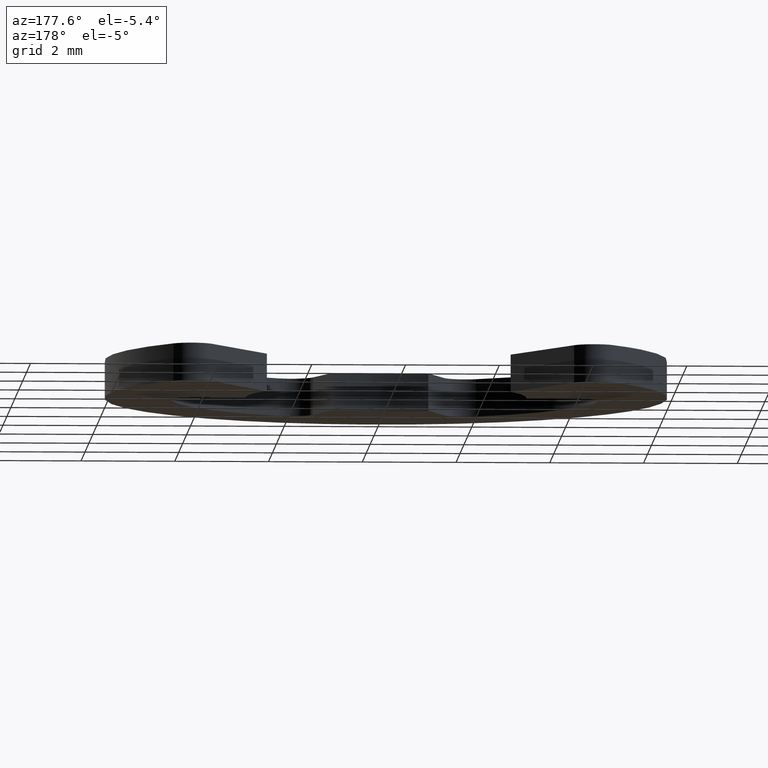
[diagram: clean part render]
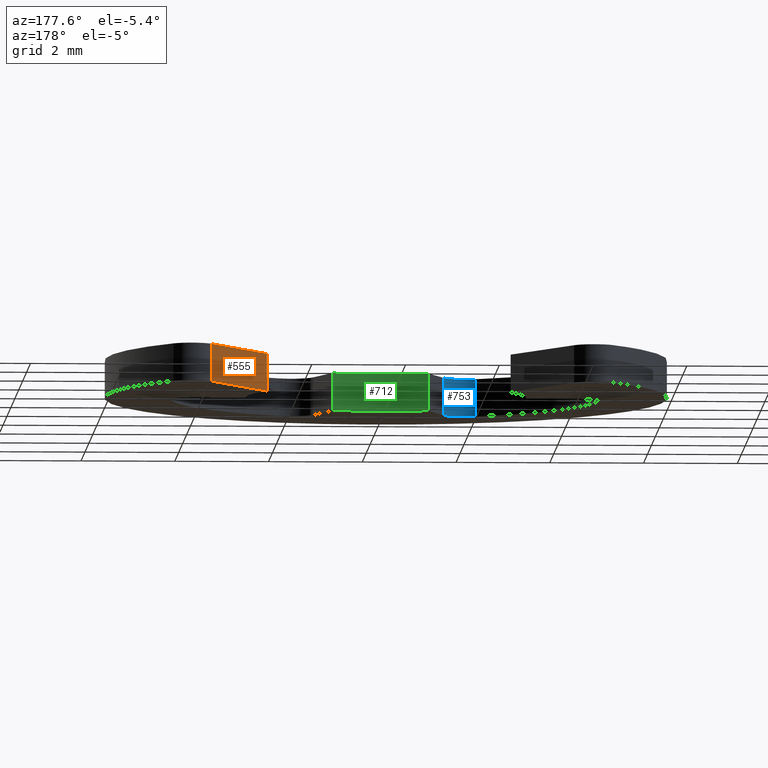
[diagram: same view with three faces highlighted in distinct colors, each labeled with its STEP entity id]
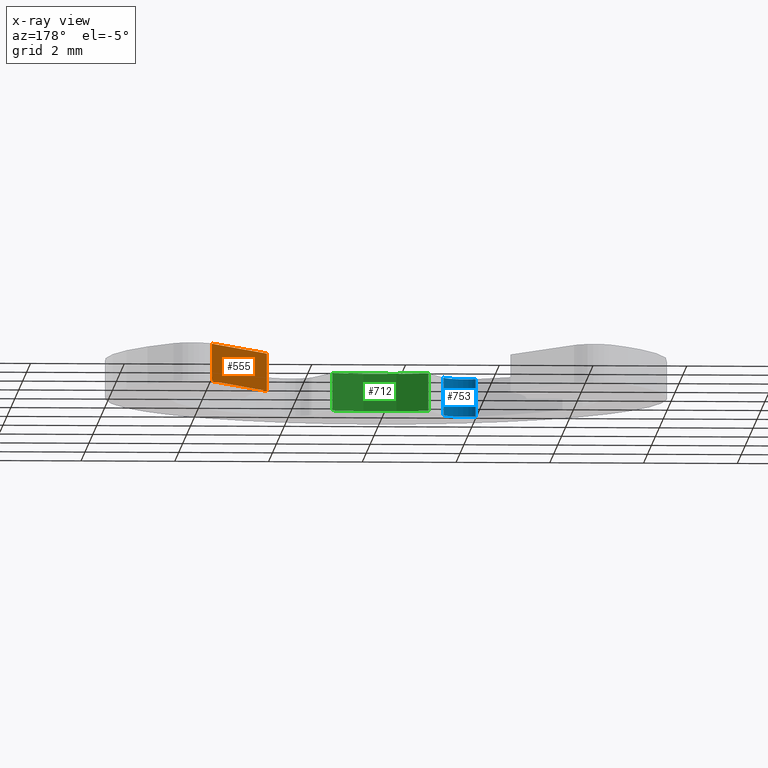
[diagram: x-ray of the same camera — body ghosted, the three highlighted faces saturated]
A machine part, auxiliary view with three faces highlighted in distinct colors.
The next image is the same camera in x-ray (body ghosted, the three faces saturated) — at least one of them is partly hidden behind the body in this view.
Their STEP definitions:

[orange] entity #555 — the highlighted face is a freeform B-spline surface patch.
#49=CARTESIAN_POINT('',(3.863010000000000,3.684273000000000,0.0));
#50=VERTEX_POINT('',#49);
#267=CARTESIAN_POINT('',(2.599998350847290,1.496665819610834,0.0));
#268=VERTEX_POINT('',#267);
#282=CARTESIAN_POINT('',(2.599998350847290,1.496665819610834,0.0));
#283=CARTESIAN_POINT('',(3.863010000000000,3.684273000000000,0.0));
#284=QUASI_UNIFORM_CURVE('',1,(#282,#283),.UNSPECIFIED.,.F.,.U.);
#285=EDGE_CURVE('',#268,#50,#284,.T.);
#295=CARTESIAN_POINT('',(3.863010000000000,3.684273000000000,0.799987999999918));
#296=VERTEX_POINT('',#295);
#314=CARTESIAN_POINT('',(2.599998350847290,1.496665819610834,0.799987999999918));
#315=VERTEX_POINT('',#314);
#316=CARTESIAN_POINT('',(2.599998350847290,1.496665819610834,0.799987999999918));
#317=CARTESIAN_POINT('',(3.863010000000000,3.684273000000000,0.799987999999918));
#318=QUASI_UNIFORM_CURVE('',1,(#316,#317),.UNSPECIFIED.,.F.,.U.);
#319=EDGE_CURVE('',#315,#296,#318,.T.);
#536=CARTESIAN_POINT('',(3.926097472078751,3.793543922414719,-0.039959396191345));
#537=CARTESIAN_POINT('',(2.536909742352494,1.387395448991825,-0.039959396191345));
#538=CARTESIAN_POINT('',(3.926097472078751,3.793543922414719,0.839947360429013));
#539=CARTESIAN_POINT('',(2.536909742352494,1.387395448991825,0.839947360429013));
#540=B_SPLINE_SURFACE_WITH_KNOTS('',1,1,((#536,#538),(#537,#539)),.UNSPECIFIED.,.F.,.F.,.U.,(2,2),(2,2),(0.0,2.778379568125513),(0.041708337925747,0.958291624821350),.UNSPECIFIED.);
#541=ORIENTED_EDGE('',*,*,#285,.F.);
#542=CARTESIAN_POINT('',(2.599998350847290,1.496665819610834,0.799987999999918));
#543=CARTESIAN_POINT('',(2.599998350847290,1.496665819610834,0.0));
#544=QUASI_UNIFORM_CURVE('',1,(#542,#543),.UNSPECIFIED.,.F.,.U.);
#545=EDGE_CURVE('',#315,#268,#544,.T.);
#546=ORIENTED_EDGE('',*,*,#545,.F.);
#547=ORIENTED_EDGE('',*,*,#319,.T.);
#548=CARTESIAN_POINT('',(3.863010000000000,3.684273000000000,0.799987999999918));
#549=CARTESIAN_POINT('',(3.863010000000000,3.684273000000000,0.0));
#550=QUASI_UNIFORM_CURVE('',1,(#548,#549),.UNSPECIFIED.,.F.,.U.);
#551=EDGE_CURVE('',#296,#50,#550,.T.);
#552=ORIENTED_EDGE('',*,*,#551,.T.);
#553=EDGE_LOOP('',(#541,#546,#547,#552));
#554=FACE_OUTER_BOUND('',#553,.T.);
#555=ADVANCED_FACE('',(#554),#540,.T.);

[blue] entity #753 — the highlighted face is a freeform B-spline surface patch.
#150=CARTESIAN_POINT('',(-2.088696213768935,-4.098456798184810,0.0));
#151=VERTEX_POINT('',#150);
#165=CARTESIAN_POINT('',(-1.391817958012584,-3.823983127035450,0.0));
#166=VERTEX_POINT('',#165);
#167=CARTESIAN_POINT('',(-1.391817958012584,-3.823983127035450,0.0));
#168=CARTESIAN_POINT('',(-1.468856879404417,-4.035644854333030,0.0));
#169=CARTESIAN_POINT('',(-1.678433037067881,-4.118188881075313,0.0));
#170=CARTESIAN_POINT('',(-1.888009194731345,-4.200732907817598,0.0));
#171=CARTESIAN_POINT('',(-2.088696213768936,-4.098456798184811,0.0));
#179=(BOUNDED_CURVE()B_SPLINE_CURVE(2,(#167,#168,#169,#170,#171),.UNSPECIFIED.,.F.,.U.)B_SPLINE_CURVE_WITH_KNOTS((3,2,3),(0.0,0.500000000000000,1.0),.UNSPECIFIED.)CURVE()GEOMETRIC_REPRESENTATION_ITEM()RATIONAL_B_SPLINE_CURVE((1.0,0.911753678768537,1.0,0.911753678768537,1.0))REPRESENTATION_ITEM(''));
#180=EDGE_CURVE('',#166,#151,#179,.T.);
#414=CARTESIAN_POINT('',(-1.391817958012584,-3.823983127035450,0.799987999999918));
#415=VERTEX_POINT('',#414);
#421=CARTESIAN_POINT('',(-2.088696213768935,-4.098456798184810,0.799987999999918));
#422=VERTEX_POINT('',#421);
#423=CARTESIAN_POINT('',(-1.391817958012584,-3.823983127035450,0.799987999999918));
#424=CARTESIAN_POINT('',(-1.468856879404417,-4.035644854333030,0.799987999999918));
#425=CARTESIAN_POINT('',(-1.678433037067881,-4.118188881075313,0.799987999999918));
#426=CARTESIAN_POINT('',(-1.888009194731345,-4.200732907817598,0.799987999999918));
#427=CARTESIAN_POINT('',(-2.088696213768936,-4.098456798184811,0.799987999999918));
#435=(BOUNDED_CURVE()B_SPLINE_CURVE(2,(#423,#424,#425,#426,#427),.UNSPECIFIED.,.F.,.U.)B_SPLINE_CURVE_WITH_KNOTS((3,2,3),(0.0,0.500000000000000,1.0),.UNSPECIFIED.)CURVE()GEOMETRIC_REPRESENTATION_ITEM()RATIONAL_B_SPLINE_CURVE((1.0,0.911753678768537,1.0,0.911753678768537,1.0))REPRESENTATION_ITEM(''));
#436=EDGE_CURVE('',#415,#422,#435,.T.);
#719=CARTESIAN_POINT('',(-1.391817958012584,-3.823983127035450,0.799987999999918));
#720=CARTESIAN_POINT('',(-1.391817958012584,-3.823983127035450,0.0));
#721=QUASI_UNIFORM_CURVE('',1,(#719,#720),.UNSPECIFIED.,.F.,.U.);
#722=EDGE_CURVE('',#415,#166,#721,.T.);
#729=CARTESIAN_POINT('',(-2.100279838521331,-4.092361131706314,0.819987699999916));
#730=CARTESIAN_POINT('',(-2.100279838521331,-4.092361131706314,-0.020499692499998));
#731=CARTESIAN_POINT('',(-1.557679898172794,-4.387027131676369,0.819987699999916));
#732=CARTESIAN_POINT('',(-1.557679898172794,-4.387027131676369,-0.020499692499998));
#733=CARTESIAN_POINT('',(-1.382265928319737,-3.795019795585861,0.819987699999916));
#734=CARTESIAN_POINT('',(-1.382265928319737,-3.795019795585861,-0.020499692499998));
#742=(BOUNDED_SURFACE()B_SPLINE_SURFACE(1,2,((#729,#731,#733),(#730,#732,#734)),.UNSPECIFIED.,.F.,.F.,.U.)GEOMETRIC_REPRESENTATION_ITEM()QUASI_UNIFORM_SURFACE()RATIONAL_B_SPLINE_SURFACE(((1.0,0.629320391049837,1.0),(1.0,0.629320391049837,1.0)))REPRESENTATION_ITEM('')SURFACE());
#743=ORIENTED_EDGE('',*,*,#180,.T.);
#744=CARTESIAN_POINT('',(-2.088696213768935,-4.098456798184810,0.799987999999918));
#745=CARTESIAN_POINT('',(-2.088696213768935,-4.098456798184810,0.0));
#746=QUASI_UNIFORM_CURVE('',1,(#744,#745),.UNSPECIFIED.,.F.,.U.);
#747=EDGE_CURVE('',#422,#151,#746,.T.);
#748=ORIENTED_EDGE('',*,*,#747,.F.);
#749=ORIENTED_EDGE('',*,*,#436,.F.);
#750=ORIENTED_EDGE('',*,*,#722,.T.);
#751=EDGE_LOOP('',(#743,#748,#749,#750));
#752=FACE_OUTER_BOUND('',#751,.T.);
#753=ADVANCED_FACE('',(#752),#742,.F.);

[green] entity #712 — the highlighted face is a freeform B-spline surface patch.
#182=CARTESIAN_POINT('',(-1.026060000000012,-2.819076000000000,0.0));
#183=VERTEX_POINT('',#182);
#189=CARTESIAN_POINT('',(1.026058412686930,-2.819078596590450,0.0));
#190=VERTEX_POINT('',#189);
#191=CARTESIAN_POINT('',(1.026058412686930,-2.819078596590450,0.0));
#192=CARTESIAN_POINT('',(-0.000000941773228,-3.192532055437769,0.0));
#193=CARTESIAN_POINT('',(-1.026060000000012,-2.819076000000000,0.0));
#201=(BOUNDED_CURVE()B_SPLINE_CURVE(2,(#191,#192,#193),.UNSPECIFIED.,.F.,.U.)CURVE()GEOMETRIC_REPRESENTATION_ITEM()QUASI_UNIFORM_CURVE()RATIONAL_B_SPLINE_CURVE((1.0,0.939692729881005,1.0))REPRESENTATION_ITEM(''));
#202=EDGE_CURVE('',#190,#183,#201,.T.);
#392=CARTESIAN_POINT('',(1.026058412686930,-2.819078596590450,0.799987999999918));
#393=VERTEX_POINT('',#392);
#399=CARTESIAN_POINT('',(-1.026060000000012,-2.819076000000000,0.799987999999918));
#400=VERTEX_POINT('',#399);
#401=CARTESIAN_POINT('',(1.026058412686930,-2.819078596590450,0.799987999999918));
#402=CARTESIAN_POINT('',(-0.000000941773228,-3.192532055437769,0.799987999999918));
#403=CARTESIAN_POINT('',(-1.026060000000012,-2.819076000000000,0.799987999999918));
#411=(BOUNDED_CURVE()B_SPLINE_CURVE(2,(#401,#402,#403),.UNSPECIFIED.,.F.,.U.)CURVE()GEOMETRIC_REPRESENTATION_ITEM()QUASI_UNIFORM_CURVE()RATIONAL_B_SPLINE_CURVE((1.0,0.939692729881005,1.0))REPRESENTATION_ITEM(''));
#412=EDGE_CURVE('',#393,#400,#411,.T.);
#678=CARTESIAN_POINT('',(1.026058412686930,-2.819078596590450,0.799987999999918));
#679=CARTESIAN_POINT('',(1.026058412686930,-2.819078596590450,0.0));
#680=QUASI_UNIFORM_CURVE('',1,(#678,#679),.UNSPECIFIED.,.F.,.U.);
#681=EDGE_CURVE('',#393,#190,#680,.T.);
#688=CARTESIAN_POINT('',(-1.050622361946017,-2.810016486175653,0.819987699999916));
#689=CARTESIAN_POINT('',(-1.050622361946017,-2.810016486175653,-0.020499692499998));
#690=CARTESIAN_POINT('',(0.040943855881788,-3.218136468260001,0.819987699999916));
#691=CARTESIAN_POINT('',(0.040943855881788,-3.218136468260001,-0.020499692499998));
#692=CARTESIAN_POINT('',(1.121773530540899,-2.782377426981788,0.819987699999916));
#693=CARTESIAN_POINT('',(1.121773530540899,-2.782377426981788,-0.020499692499998));
#701=(BOUNDED_SURFACE()B_SPLINE_SURFACE(1,2,((#688,#690,#692),(#689,#691,#693)),.UNSPECIFIED.,.F.,.F.,.U.)B_SPLINE_SURFACE_WITH_KNOTS((2,2),(3,3),(0.0,1.0),(0.0,2.248874352510209),.UNSPECIFIED.)GEOMETRIC_REPRESENTATION_ITEM()RATIONAL_B_SPLINE_SURFACE(((1.0,0.931314987442227,0.998228309499798),(1.0,0.931314987442227,0.998228309499798)))REPRESENTATION_ITEM('')SURFACE());
#702=ORIENTED_EDGE('',*,*,#202,.T.);
#703=CARTESIAN_POINT('',(-1.026060000000012,-2.819076000000000,0.799987999999918));
#704=CARTESIAN_POINT('',(-1.026060000000012,-2.819076000000000,0.0));
#705=QUASI_UNIFORM_CURVE('',1,(#703,#704),.UNSPECIFIED.,.F.,.U.);
#706=EDGE_CURVE('',#400,#183,#705,.T.);
#707=ORIENTED_EDGE('',*,*,#706,.F.);
#708=ORIENTED_EDGE('',*,*,#412,.F.);
#709=ORIENTED_EDGE('',*,*,#681,.T.);
#710=EDGE_LOOP('',(#702,#707,#708,#709));
#711=FACE_OUTER_BOUND('',#710,.T.);
#712=ADVANCED_FACE('',(#711),#701,.F.);